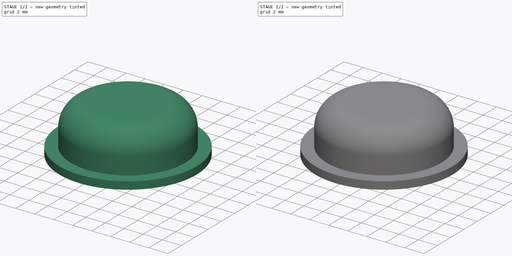
[diagram: build sequence overview — one tinted view per stage of 2, left to right]
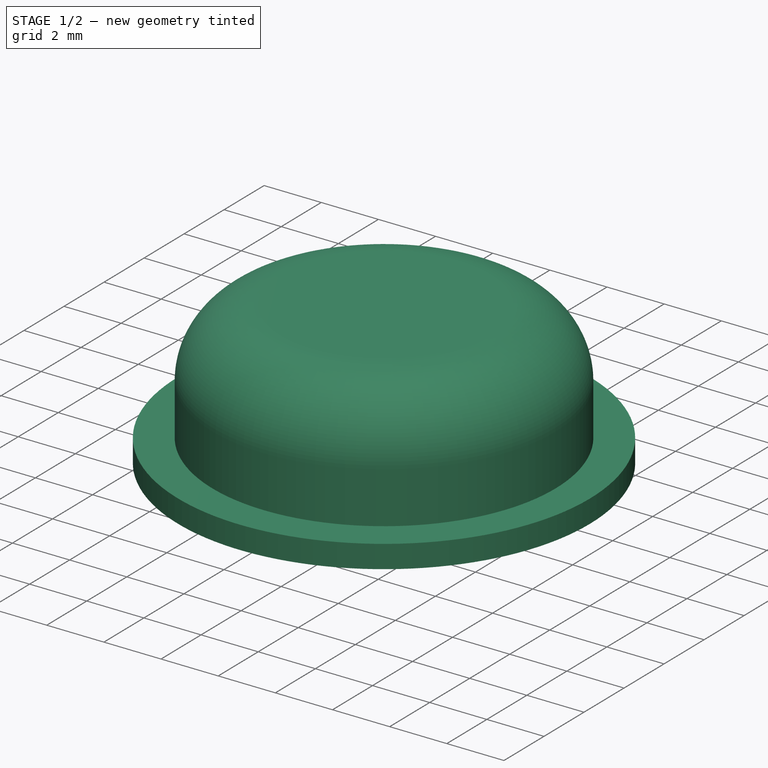
[diagram: stage 1 of 2 — iso view after this stage's code; geometry added in this stage tinted green]
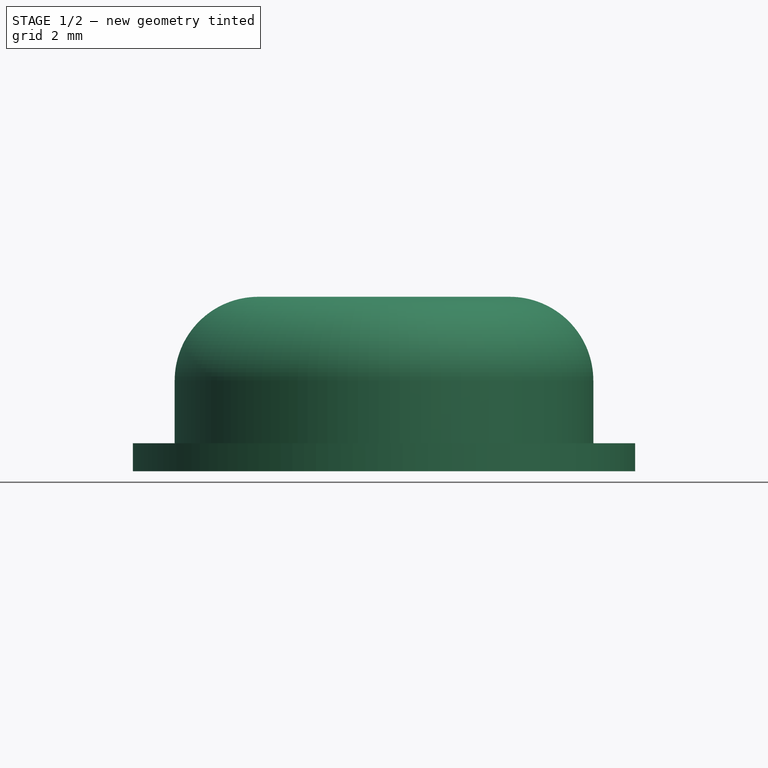
[diagram: stage 1 of 2 — front view after this stage's code; geometry added in this stage tinted green]
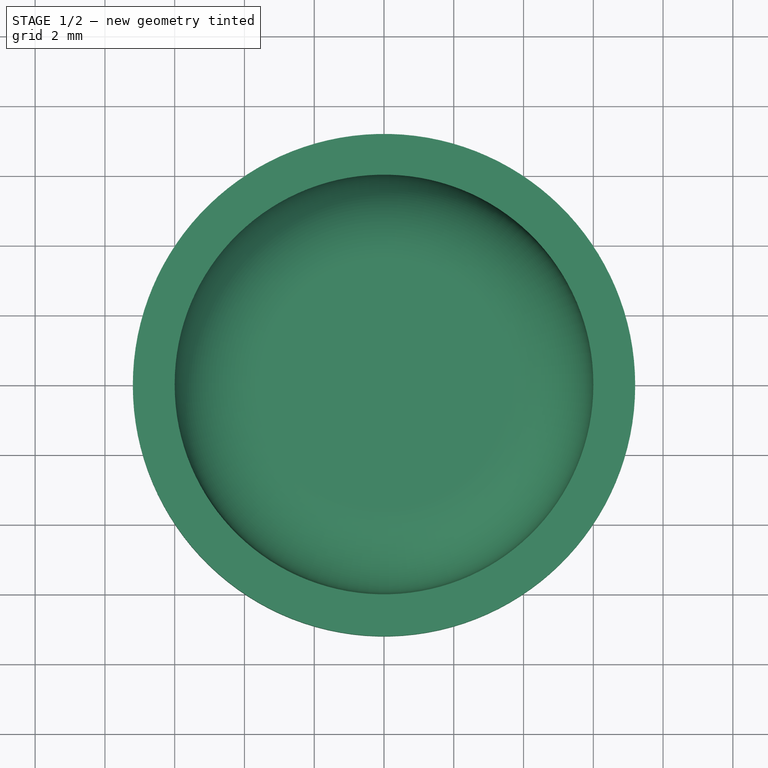
[diagram: stage 1 of 2 — top view after this stage's code; geometry added in this stage tinted green]
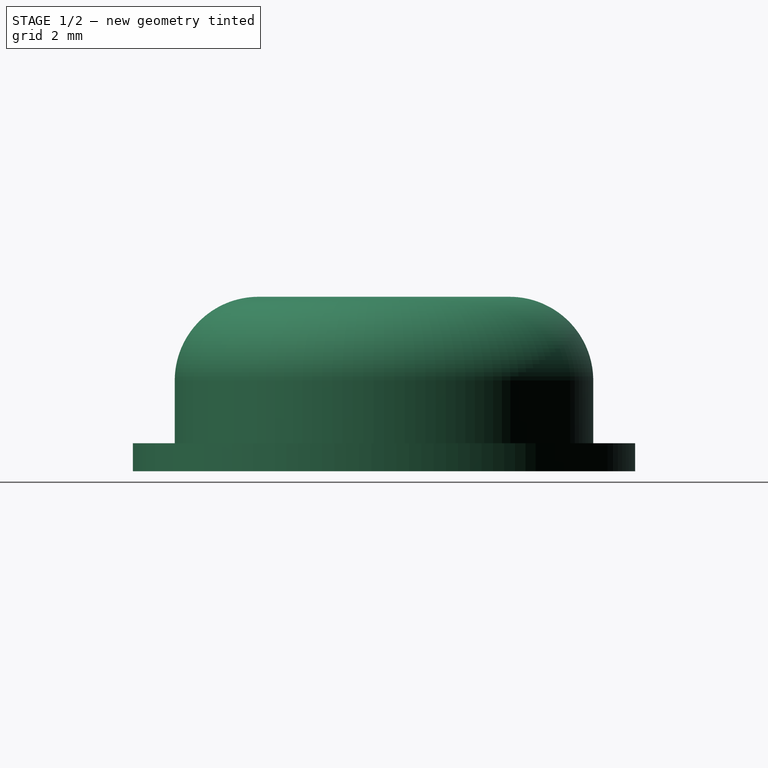
[diagram: stage 1 of 2 — right view after this stage's code; geometry added in this stage tinted green]
FCSTD DOCUMENT  (FreeCAD 0.20R29410 (Git))
Label: NeoPixel-bubble
Comment: FreeCAD-models by mgesteiro -- https://github.com/mgesteiro/FreeCAD-models
License: Creative Commons Attribution-ShareAlike
LicenseURL: http://creativecommons.org/licenses/by-sa/4.0/
objects: Sketcher::SketchObject×2, Part::Feature×1, PartDesign::Revolution×1, PartDesign::Pocket×1, PartDesign::Body×1
note: 8 computed .brp shape members not serialized (recipe doc carries the construction recipe); baked Part::Feature solids carry a one-line shape summary decoded from their .brp

FEATURE [Sketcher::SketchObject] Sketch021  label="Sketch-neopixel-support-hole"
  FullyConstrained = true
  MapMode = 5
  Support = -> [XY_Plane012]
  sketch-geometry (14):
    g0: LineSegment StartX=-3.8 StartY=-1 StartZ=0 EndX=-3.8 EndY=1 EndZ=0
    g1: LineSegment StartX=-3.8 StartY=1 StartZ=0 EndX=-2.7 EndY=1 EndZ=0
    g2: LineSegment StartX=-2.7 StartY=1 StartZ=0 EndX=-2.7 EndY=2.7 EndZ=0
    g3: LineSegment StartX=-2.7 StartY=2.7 StartZ=0 EndX=2.7 EndY=2.7 EndZ=0
    g4: LineSegment StartX=2.7 StartY=2.7 StartZ=0 EndX=2.7 EndY=1 EndZ=0
    g5: LineSegment StartX=2.7 StartY=1 StartZ=0 EndX=3.8 EndY=1 EndZ=0
    g6: LineSegment StartX=3.8 StartY=1 StartZ=0 EndX=3.8 EndY=-1 EndZ=0
    g7: LineSegment StartX=3.8 StartY=-1 StartZ=0 EndX=2.7 EndY=-1 EndZ=0
    g8: LineSegment StartX=2.7 StartY=-1 StartZ=0 EndX=2.7 EndY=-2.7 EndZ=0
    g9: LineSegment StartX=2.7 StartY=-2.7 StartZ=0 EndX=-2.7 EndY=-2.7 EndZ=0
    g10: LineSegment StartX=-2.7 StartY=-2.7 StartZ=0 EndX=-2.7 EndY=-1 EndZ=0
    g11: LineSegment StartX=-2.7 StartY=-1 StartZ=0 EndX=-3.8 EndY=-1 EndZ=0
    g12: Circle CenterX=0 CenterY=0 CenterZ=0 NormalX=0 NormalY=0 NormalZ=1 AngleXU=0 Radius=4.72938
    g13: LineSegment StartX=0 StartY=0 StartZ=0 EndX=4.57366 EndY=-1.20359 EndZ=0
  constraints (39):
    c: Vertical(g0)
    c: Coincident(g0,g1)
    c: Horizontal(g1)
    c: Coincident(g1,g2)
    c: Vertical(g2)
    c: Coincident(g2,g3)
    c: Horizontal(g3)
    c: Coincident(g3,g4)
    c: Vertical(g4)
    c: Coincident(g4,g5)
    c: Horizontal(g5)
    c: Coincident(g5,g6)
    c: Vertical(g6)
    c: Coincident(g6,g7)
    c: Horizontal(g7)
    c: Coincident(g7,g8)
    c: Vertical(g8)
    c: Coincident(g8,g9)
    c: Horizontal(g9)
    c: Coincident(g9,g10)
    c: Vertical(g10)
    c: Coincident(g10,g11)
    c: Horizontal(g11)
    c: Coincident(g0,g11)
    c: PointOnObject(g4,g8)
    c: PointOnObject(g10,g7)
    c: Equal(g10,g2)
    c: Equal(g1,g5)
    c: DistanceY(g0,g0) = 2
    c: Symmetric(g1,g10,g-1)
    c: Symmetric(g1,g4,g-2)
    c: DistanceX(g11,g11) = 1.1
    c: DistanceY(g2,g2) = 1.7
    c: DistanceX(g3,g3) = 5.4
    c: Coincident(g12,g-1)
    c: Coincident(g13,g12)
    c: PointOnObject(g13,g12)
    c: PointOnObject(g6,g13)
    c: Distance(g6,g13) = 0.8
FEATURE [Part::Feature] Group001  label="neopixel"
  Placement = pos=(0,0,-1.4) rot=(0,0,1;0rad)
  shape: bbox 9 x 9 x 3.101 mm, 153 faces, 6 solids (baked)
FEATURE [Sketcher::SketchObject] Sketch  label="Sketch-bubble-profile"
  FullyConstrained = true
  MapMode = 5
  Placement = pos=(0,0,0) rot=(1,0,0;1.5708rad)
  Support = -> [XZ_Plane012]
  sketch-geometry (10):
    g0: LineSegment StartX=4.8 StartY=-1.8 StartZ=0 EndX=7.2 EndY=-1.8 EndZ=0
    g1: LineSegment StartX=4.8 StartY=-1.8 StartZ=0 EndX=4.8 EndY=0 EndZ=0
    g2: LineSegment StartX=4.8 StartY=0 StartZ=0 EndX=0 EndY=0 EndZ=0
    g3: ArcOfCircle CenterX=3.6 CenterY=0.8 CenterZ=0 NormalX=0 NormalY=0 NormalZ=1 AngleXU=0 Radius=2.4 StartAngle=1e-16 EndAngle=1.5708
    g4: LineSegment StartX=6 StartY=0.8 StartZ=0 EndX=6 EndY=-1 EndZ=0
    g5: LineSegment StartX=3.6 StartY=3.2 StartZ=0 EndX=0 EndY=3.2 EndZ=0
    g6: LineSegment StartX=0 StartY=-1.4 StartZ=0 EndX=3.6 EndY=3.2 EndZ=0
    g7: LineSegment StartX=0 StartY=3.2 StartZ=0 EndX=0 EndY=0 EndZ=0
    g8: LineSegment StartX=6 StartY=-1 StartZ=0 EndX=7.2 EndY=-1 EndZ=0
    g9: LineSegment StartX=7.2 StartY=-1 StartZ=0 EndX=7.2 EndY=-1.8 EndZ=0
  constraints (28):
    c: Horizontal(g0)
    c: PointOnObject(g1,g-1)
    c: Vertical(g1)
    c: Coincident(g1,g2)
    c: Coincident(g2,g-1)
    c: Coincident(g0,g1)
    c: DistanceY(g0) = -1.8
    c: DistanceX(g2,g2) = 4.8
    c: Tangent(g3,g4) = 1.5708
    c: Radius(g3) = 2.4
    c: Tangent(g3,g5) = -1.5708
    c: Horizontal(g5)
    c: Vertical(g4)
    c: Coincident(g6,g3)
    c: Coincident(g7,g5)
    c: Coincident(g7,g2)
    c: Vertical(g7)
    c: DistanceY(g6) = -1.4
    c: PointOnObject(g6,g-2)
    c: DistanceY(g0,g3) = 5
    c: Horizontal(g8)
    c: Coincident(g8,g9)
    c: Vertical(g9)
    c: Coincident(g4,g8)
    c: DistanceX(g8,g8) = 1.2
    c: DistanceY(g9,g9) = 0.8
    c: DistanceX(g0,g4) = 1.2
    c: Coincident(g0,g9)
FEATURE [PartDesign::Revolution] Revolution  label="Revolution-bubble"
  Angle = 360
  Axis = (0,-2e-16,1)
  Base = (0,0,0)
  Placement = pos=(0,0,0) rot=(1,0,0;1.5708rad)
  Profile = -> Sketch
  ReferenceAxis = -> Sketch [V_Axis]
  Reversed = true
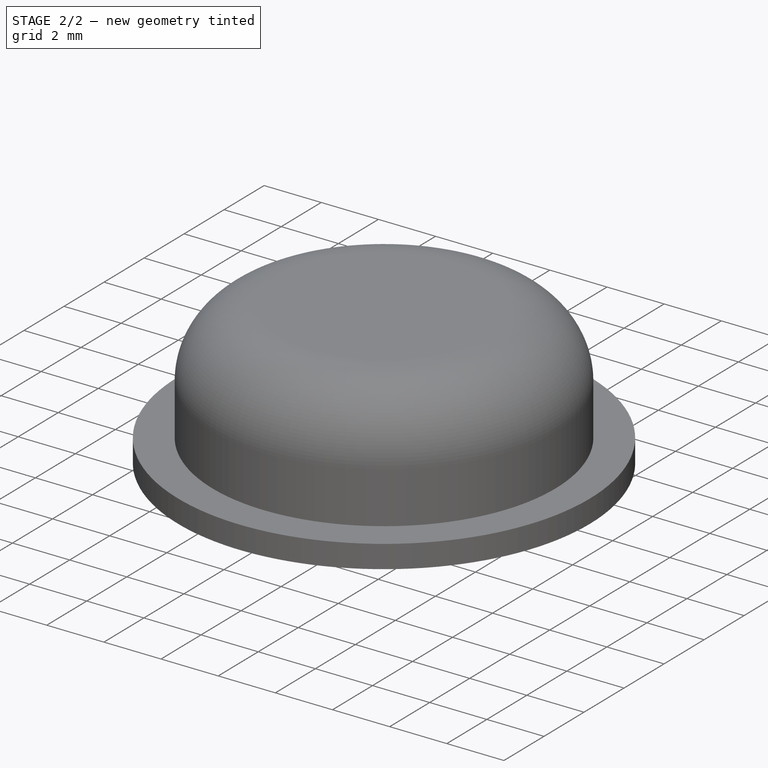
[diagram: stage 2 of 2 — iso view after this stage's code; geometry added in this stage tinted green]
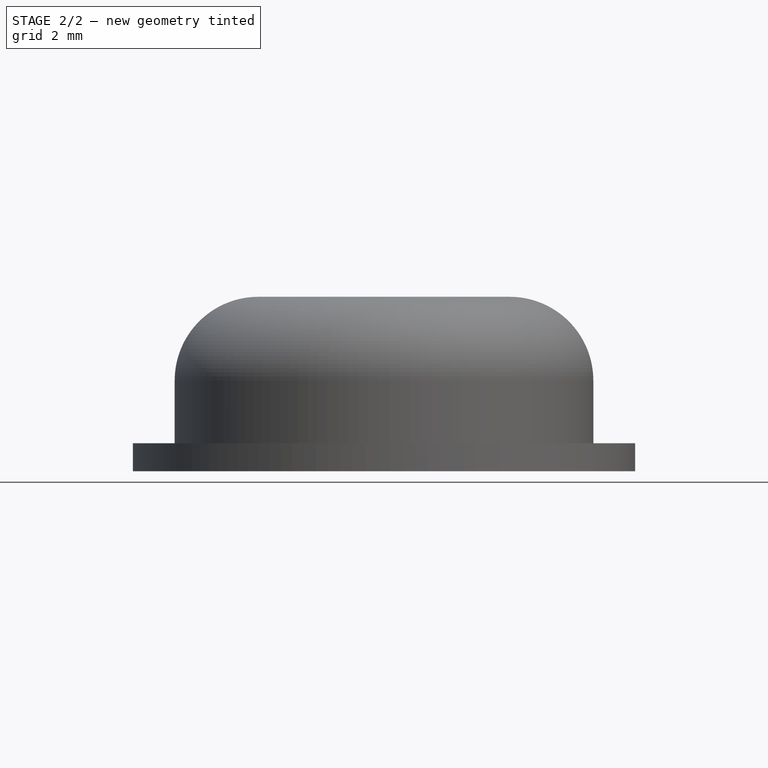
[diagram: stage 2 of 2 — front view after this stage's code; geometry added in this stage tinted green]
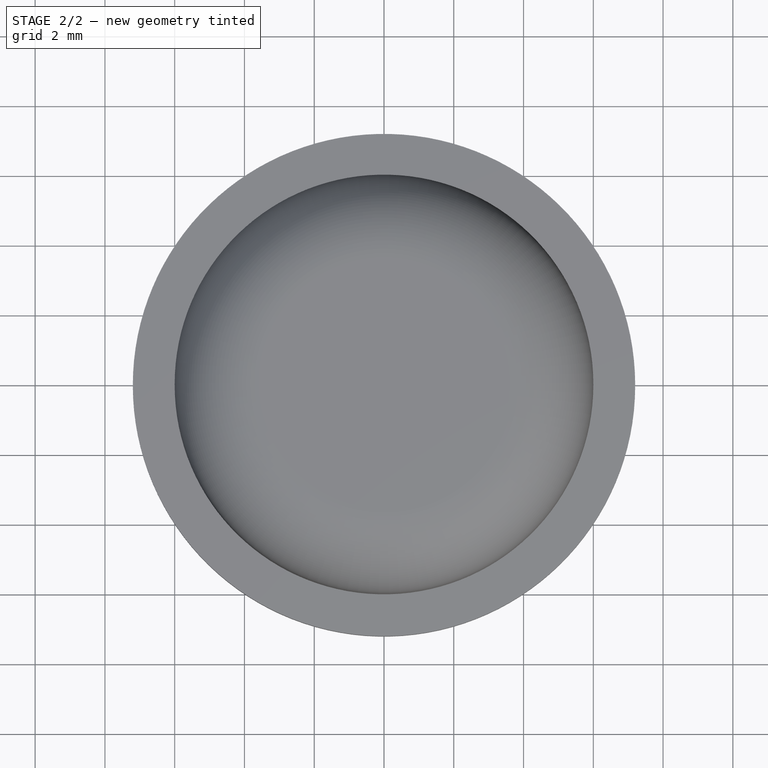
[diagram: stage 2 of 2 — top view after this stage's code; geometry added in this stage tinted green]
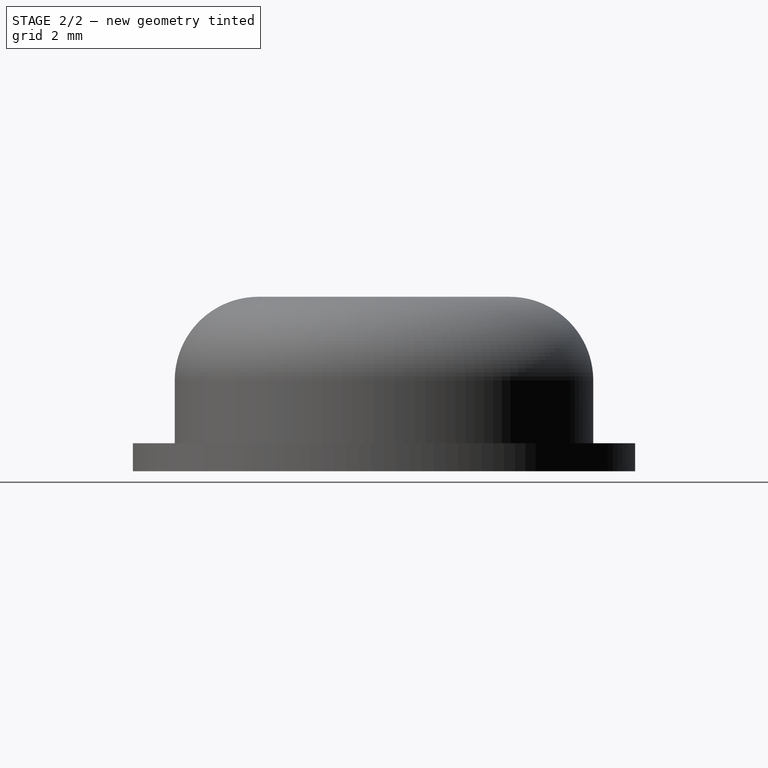
[diagram: stage 2 of 2 — right view after this stage's code; geometry added in this stage tinted green]
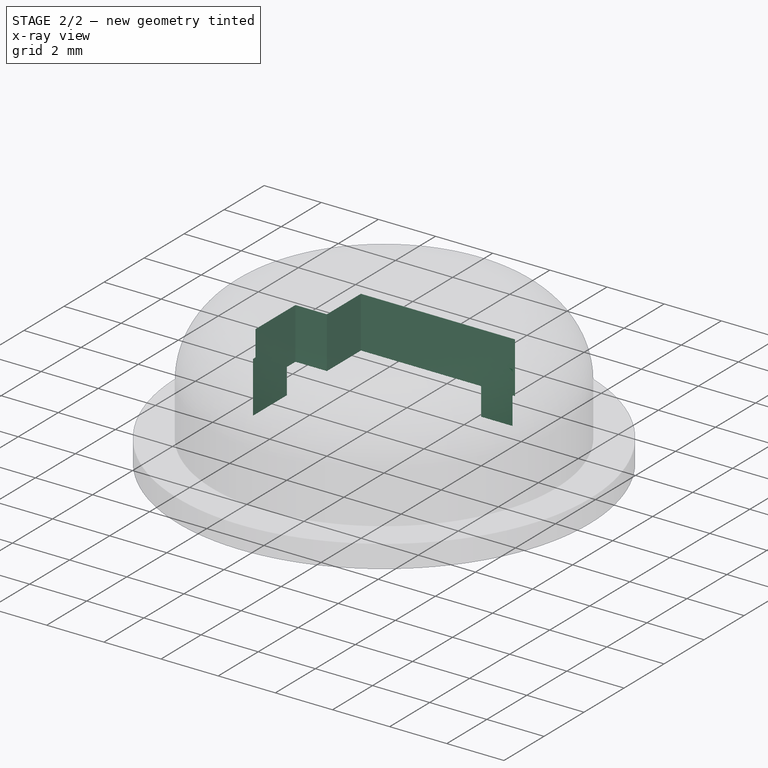
[diagram: stage 2 of 2 — x-ray composite at the iso view; earlier geometry ghosted, this stage's added geometry solid]
FEATURE [PartDesign::Pocket] Pocket  label="Pocket-neopixel-support-hole"
  BaseFeature = -> Revolution
  Direction = (0,0,-1)
  Length = 1.8
  Length2 = 100
  Placement = pos=(0,0,0) rot=(1,0,0;1.5708rad)
  Profile = -> Sketch021
  Reversed = true
  Type = 0
FEATURE [PartDesign::Body] Body004005  label="Body-NeoPixel-bubble"
  Group = -> [Sketch,Revolution,Sketch021,Pocket]
  Origin = -> Origin012
  Tip = -> Pocket
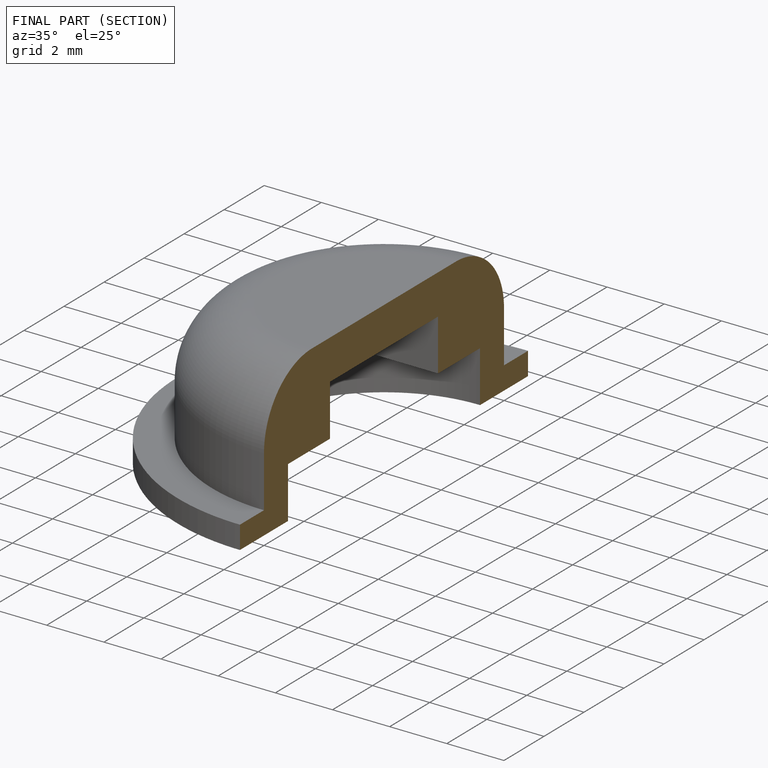
[diagram: finished part — half-section view (interior)]
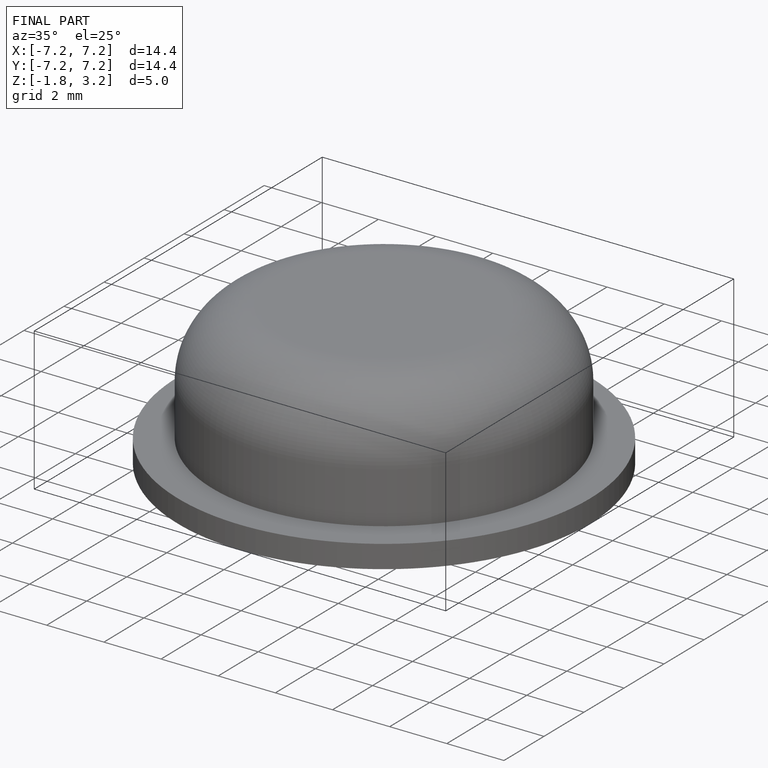
[diagram: finished part — iso view with bounding-box wireframe]
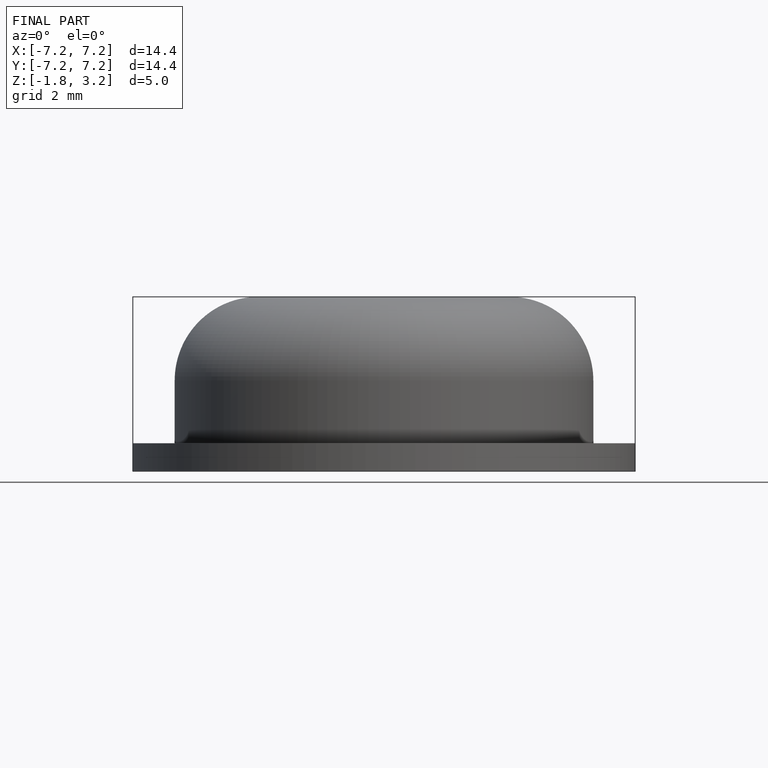
[diagram: finished part — front view with bounding-box wireframe]
